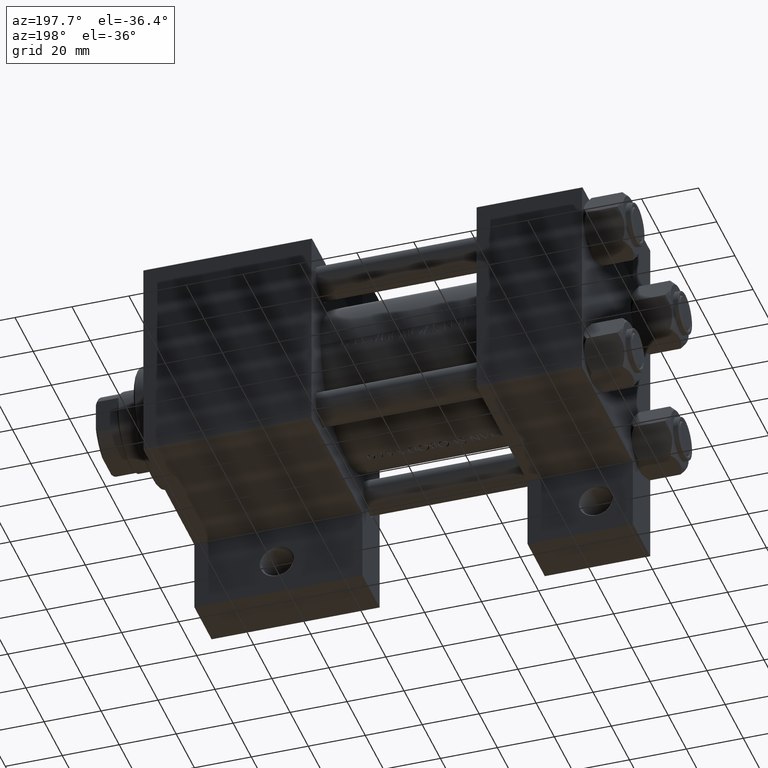
[diagram: clean part render]
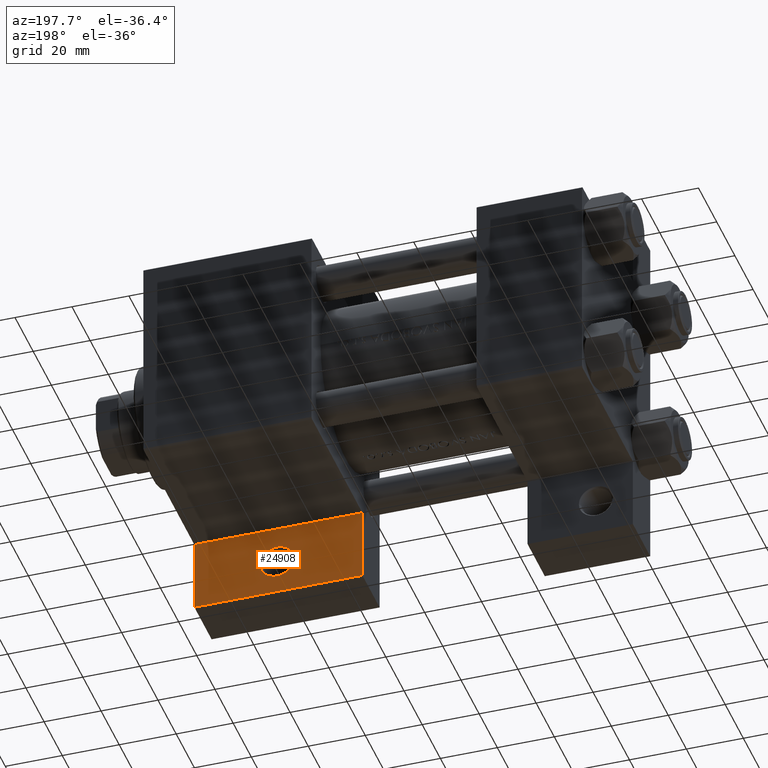
[diagram: same view with one face highlighted and labeled with its STEP entity id]
A machine part, auxiliary view. The second image highlights one B-rep face of the part: STEP entity #24908.
In plain terms, the highlighted planar face has unit normal (0, 1, 0).
Its self-contained STEP definition (entity closure, byte-faithful):
#94 = DIRECTION ( 'NONE',  ( -0.000000000000000000, -0.000000000000000000, -1.000000000000000000 ) ) ;
#426 = VERTEX_POINT ( 'NONE', #39878 ) ;
#1541 = ORIENTED_EDGE ( 'NONE', *, *, #26800, .F. ) ;
#1542 = DIRECTION ( 'NONE',  ( 5.337610695313252371E-16, 1.000000000000000000, -0.000000000000000000 ) ) ;
#1768 = CARTESIAN_POINT ( 'NONE',  ( 95.00000000000001421, 63.50000000000000000, -18.50000000000000000 ) ) ;
#3608 = EDGE_CURVE ( 'NONE', #44213, #23987, #13062, .T. ) ;
#4422 = CARTESIAN_POINT ( 'NONE',  ( 125.0000000000000000, 51.00000000000000000, -18.50000000000000000 ) ) ;
#4544 = DIRECTION ( 'NONE',  ( -0.000000000000000000, -0.000000000000000000, -1.000000000000000000 ) ) ;
#7822 = DIRECTION ( 'NONE',  ( 1.000000000000000000, -4.704334850106594808E-16, 0.000000000000000000 ) ) ;
#8030 = DIRECTION ( 'NONE',  ( 1.000000000000000000, 0.000000000000000000, 0.000000000000000000 ) ) ;
#10696 = ORIENTED_EDGE ( 'NONE', *, *, #36049, .T. ) ;
#11527 = VERTEX_POINT ( 'NONE', #34554 ) ;
#11841 = AXIS2_PLACEMENT_3D ( 'NONE', #4422, #94, #8030 ) ;
#11867 = CIRCLE ( 'NONE', #11841, 5.999500000000046462 ) ;
#12451 = DIRECTION ( 'NONE',  ( -1.067522139062651263E-15, -1.000000000000000000, 0.000000000000000000 ) ) ;
#13062 = LINE ( 'NONE', #1768, #45627 ) ;
#15104 = VECTOR ( 'NONE', #28717, 1000.000000000000000 ) ;
#16290 = CARTESIAN_POINT ( 'NONE',  ( 154.0000000000000284, 63.49999999999997158, -18.50000000000000000 ) ) ;
#16622 = EDGE_CURVE ( 'NONE', #11527, #426, #22467, .T. ) ;
#17884 = CARTESIAN_POINT ( 'NONE',  ( 95.00000000000000000, 37.50000000000000000, -18.50000000000000000 ) ) ;
#20143 = EDGE_CURVE ( 'NONE', #23987, #22604, #41507, .T. ) ;
#22250 = ORIENTED_EDGE ( 'NONE', *, *, #16622, .T. ) ;
#22329 = DIRECTION ( 'NONE',  ( 1.000000000000000000, 0.000000000000000000, -0.000000000000000000 ) ) ;
#22467 = CIRCLE ( 'NONE', #44717, 5.999500000000046462 ) ;
#22604 = VERTEX_POINT ( 'NONE', #28572 ) ;
#23754 = LINE ( 'NONE', #16290, #32130 ) ;
#23932 = DIRECTION ( 'NONE',  ( 1.000000000000000000, 0.000000000000000000, 0.000000000000000000 ) ) ;
#23987 = VERTEX_POINT ( 'NONE', #38348 ) ;
#24908 = ADVANCED_FACE ( 'NONE', ( #25698, #40620 ), #25216, .T. ) ;
#25216 = PLANE ( 'NONE',  #42722 ) ;
#25617 = VECTOR ( 'NONE', #7822, 1000.000000000000000 ) ;
#25698 = FACE_BOUND ( 'NONE', #37508, .T. ) ;
#25945 = CARTESIAN_POINT ( 'NONE',  ( 0.000000000000000000, 0.000000000000000000, -18.50000000000000000 ) ) ;
#26800 = EDGE_CURVE ( 'NONE', #43990, #44213, #43388, .T. ) ;
#28572 = CARTESIAN_POINT ( 'NONE',  ( 154.0000000000000284, 63.49999999999997158, -18.50000000000000000 ) ) ;
#28717 = DIRECTION ( 'NONE',  ( -1.000000000000000000, 1.176083712526648949E-16, -0.000000000000000000 ) ) ;
#30163 = CARTESIAN_POINT ( 'NONE',  ( 95.00000000000000000, 37.50000000000000000, -18.50000000000000355 ) ) ;
#32057 = ORIENTED_EDGE ( 'NONE', *, *, #3608, .F. ) ;
#32130 = VECTOR ( 'NONE', #12451, 1000.000000000000000 ) ;
#32198 = ORIENTED_EDGE ( 'NONE', *, *, #45578, .F. ) ;
#33713 = ORIENTED_EDGE ( 'NONE', *, *, #20143, .F. ) ;
#34554 = CARTESIAN_POINT ( 'NONE',  ( 130.9995000000000118, 51.00000000000000000, -18.50000000000000000 ) ) ;
#35550 = EDGE_LOOP ( 'NONE', ( #32057, #1541, #32198, #33713 ) ) ;
#36049 = EDGE_CURVE ( 'NONE', #426, #11527, #11867, .T. ) ;
#36284 = DIRECTION ( 'NONE',  ( 0.000000000000000000, 0.000000000000000000, 1.000000000000000000 ) ) ;
#36934 = CARTESIAN_POINT ( 'NONE',  ( 95.00000000000001421, 63.50000000000000000, -18.50000000000000000 ) ) ;
#37508 = EDGE_LOOP ( 'NONE', ( #22250, #10696 ) ) ;
#38348 = CARTESIAN_POINT ( 'NONE',  ( 95.00000000000001421, 63.50000000000000000, -18.50000000000000000 ) ) ;
#39878 = CARTESIAN_POINT ( 'NONE',  ( 119.0004999999999598, 51.00000000000000000, -18.50000000000000000 ) ) ;
#40620 = FACE_OUTER_BOUND ( 'NONE', #35550, .T. ) ;
#40640 = CARTESIAN_POINT ( 'NONE',  ( 154.0000000000000000, 37.49999999999999289, -18.50000000000000000 ) ) ;
#41507 = LINE ( 'NONE', #36934, #25617 ) ;
#42722 = AXIS2_PLACEMENT_3D ( 'NONE', #25945, #36284, #22329 ) ;
#43388 = LINE ( 'NONE', #17884, #15104 ) ;
#43990 = VERTEX_POINT ( 'NONE', #40640 ) ;
#44213 = VERTEX_POINT ( 'NONE', #30163 ) ;
#44717 = AXIS2_PLACEMENT_3D ( 'NONE', #45834, #4544, #23932 ) ;
#45578 = EDGE_CURVE ( 'NONE', #22604, #43990, #23754, .T. ) ;
#45627 = VECTOR ( 'NONE', #1542, 1000.000000000000000 ) ;
#45834 = CARTESIAN_POINT ( 'NONE',  ( 125.0000000000000000, 51.00000000000000000, -18.50000000000000000 ) ) ;